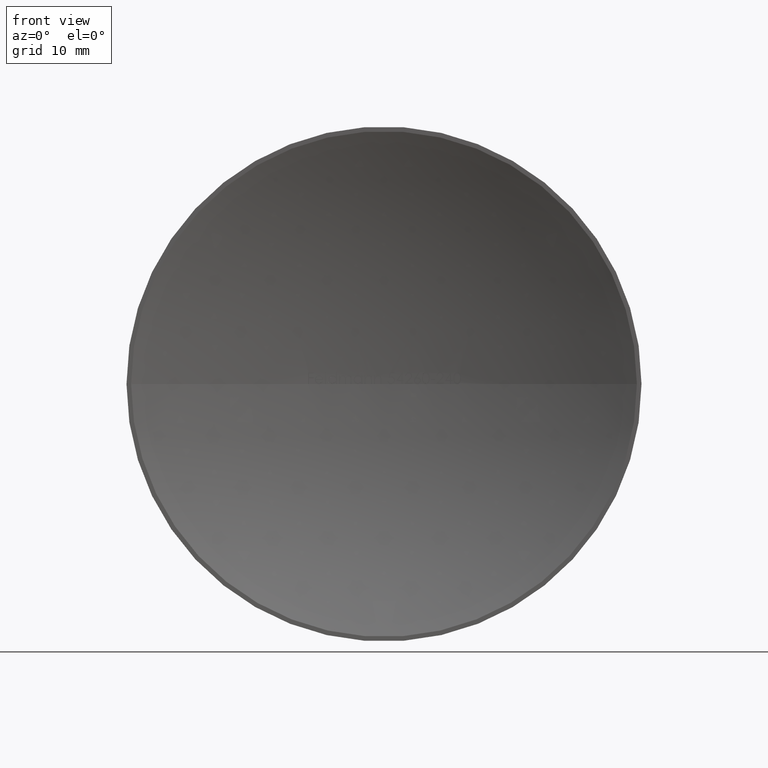
[diagram: clean part render]
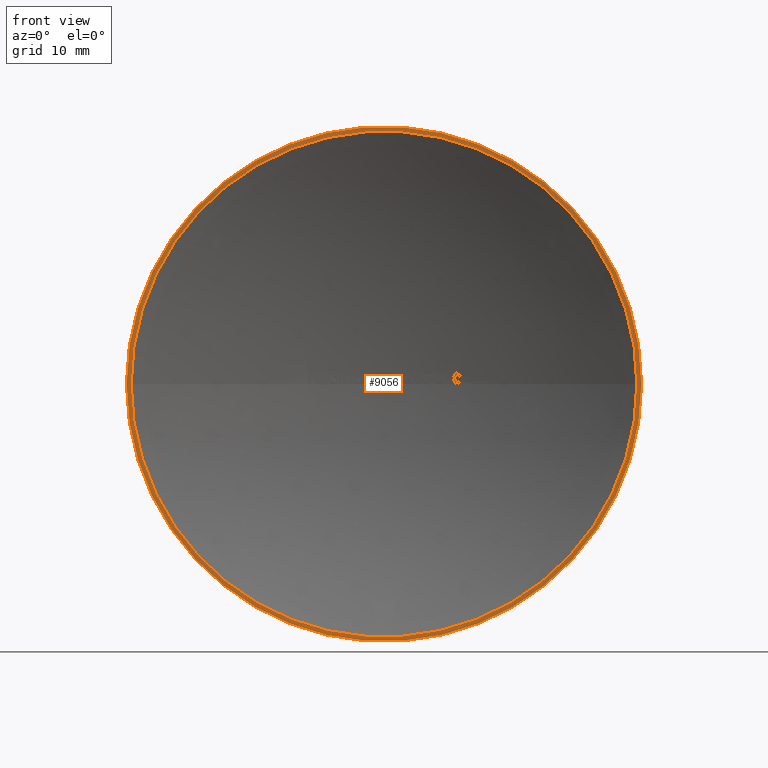
[diagram: same view with one face highlighted and labeled with its STEP entity id]
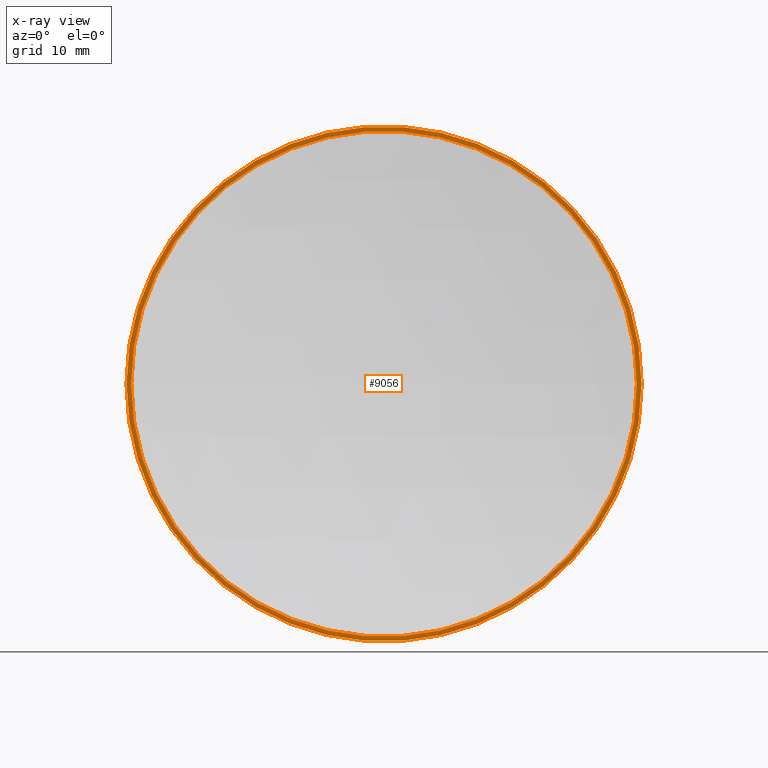
[diagram: x-ray of the same camera — body ghosted, the highlighted face saturated]
A machine part, front view. The second image highlights one B-rep face of the part: STEP entity #9056.
The next image is the same camera in x-ray: the body ghosted, the highlighted face saturated — about 0% of this face is hidden behind the body in this view.
In plain terms, the highlighted planar face has unit normal (-0, -1, 0).
Its self-contained STEP definition (entity closure, byte-faithful):
#12 = CIRCLE ( 'NONE', #3420, 29.60612267758144600 ) ;
#193 = VERTEX_POINT ( 'NONE', #11828 ) ;
#419 = CARTESIAN_POINT ( 'NONE',  ( -30.15000000000010900, 4.747111756292559200E-013, 3.692310099429277500E-015 ) ) ;
#534 = AXIS2_PLACEMENT_3D ( 'NONE', #11966, #5035, #3065 ) ;
#654 = DIRECTION ( 'NONE',  ( 1.000000000000000000, -7.920025966713426600E-015, 0.0000000000000000000 ) ) ;
#733 = FACE_BOUND ( 'NONE', #1057, .T. ) ;
#1057 = EDGE_LOOP ( 'NONE', ( #4331, #8677 ) ) ;
#1478 = DIRECTION ( 'NONE',  ( -7.920025966713426600E-015, -1.000000000000000000, -0.0000000000000000000 ) ) ;
#1558 = CIRCLE ( 'NONE', #3557, 29.60612267758144600 ) ;
#1873 = ORIENTED_EDGE ( 'NONE', *, *, #11328, .T. ) ;
#1996 = DIRECTION ( 'NONE',  ( -7.920025966713426600E-015, -1.000000000000000000, -0.0000000000000000000 ) ) ;
#2578 = CARTESIAN_POINT ( 'NONE',  ( 29.60612267758139300, -1.467955616396510900E-016, -3.625704337226327700E-015 ) ) ;
#2735 = EDGE_CURVE ( 'NONE', #11004, #193, #1558, .T. ) ;
#3065 = DIRECTION ( 'NONE',  ( 1.000000000000000000, -7.920025966713426600E-015, 0.0000000000000000000 ) ) ;
#3191 = PLANE ( 'NONE',  #3535 ) ;
#3354 = FACE_OUTER_BOUND ( 'NONE', #9846, .T. ) ;
#3420 = AXIS2_PLACEMENT_3D ( 'NONE', #10807, #12709, #10674 ) ;
#3421 = EDGE_CURVE ( 'NONE', #193, #11004, #12, .T. ) ;
#3535 = AXIS2_PLACEMENT_3D ( 'NONE', #11143, #9257, #5257 ) ;
#3557 = AXIS2_PLACEMENT_3D ( 'NONE', #7301, #1996, #7942 ) ;
#3653 = EDGE_CURVE ( 'NONE', #6388, #7652, #10859, .T. ) ;
#4331 = ORIENTED_EDGE ( 'NONE', *, *, #3421, .F. ) ;
#4389 = CIRCLE ( 'NONE', #12468, 30.15000000000005200 ) ;
#5035 = DIRECTION ( 'NONE',  ( -7.920025966713426600E-015, -1.000000000000000000, -0.0000000000000000000 ) ) ;
#5257 = DIRECTION ( 'NONE',  ( 1.000000000000000000, -7.920025966713426600E-015, 0.0000000000000000000 ) ) ;
#5573 = CARTESIAN_POINT ( 'NONE',  ( -5.148016878363533900E-014, 2.359223927328457600E-013, 0.0000000000000000000 ) ) ;
#6388 = VERTEX_POINT ( 'NONE', #8105 ) ;
#7301 = CARTESIAN_POINT ( 'NONE',  ( -5.148016878363535200E-014, 2.341876692568689600E-013, 0.0000000000000000000 ) ) ;
#7652 = VERTEX_POINT ( 'NONE', #419 ) ;
#7942 = DIRECTION ( 'NONE',  ( 1.000000000000000000, -7.920025966713425000E-015, 0.0000000000000000000 ) ) ;
#8105 = CARTESIAN_POINT ( 'NONE',  ( 30.14999999999999900, -2.866390163564436000E-015, 0.0000000000000000000 ) ) ;
#8173 = ORIENTED_EDGE ( 'NONE', *, *, #3653, .T. ) ;
#8677 = ORIENTED_EDGE ( 'NONE', *, *, #2735, .F. ) ;
#9056 = ADVANCED_FACE ( 'NONE', ( #3354, #733 ), #3191, .T. ) ;
#9257 = DIRECTION ( 'NONE',  ( -7.920025966713426600E-015, -1.000000000000000000, 0.0000000000000000000 ) ) ;
#9846 = EDGE_LOOP ( 'NONE', ( #8173, #1873 ) ) ;
#10674 = DIRECTION ( 'NONE',  ( 1.000000000000000000, -7.920025966713425000E-015, 0.0000000000000000000 ) ) ;
#10807 = CARTESIAN_POINT ( 'NONE',  ( -5.148016878363535200E-014, 2.341876692568689600E-013, 0.0000000000000000000 ) ) ;
#10859 = CIRCLE ( 'NONE', #534, 30.15000000000005200 ) ;
#11004 = VERTEX_POINT ( 'NONE', #2578 ) ;
#11143 = CARTESIAN_POINT ( 'NONE',  ( 30.14999999999999900, -3.418209078250626500E-015, 0.0000000000000000000 ) ) ;
#11328 = EDGE_CURVE ( 'NONE', #7652, #6388, #4389, .T. ) ;
#11828 = CARTESIAN_POINT ( 'NONE',  ( -29.60612267758091300, 4.702568575513543900E-013, 0.0000000000000000000 ) ) ;
#11966 = CARTESIAN_POINT ( 'NONE',  ( -5.148016878363533900E-014, 2.359223927328457600E-013, 0.0000000000000000000 ) ) ;
#12468 = AXIS2_PLACEMENT_3D ( 'NONE', #5573, #1478, #654 ) ;
#12709 = DIRECTION ( 'NONE',  ( -7.920025966713426600E-015, -1.000000000000000000, -0.0000000000000000000 ) ) ;